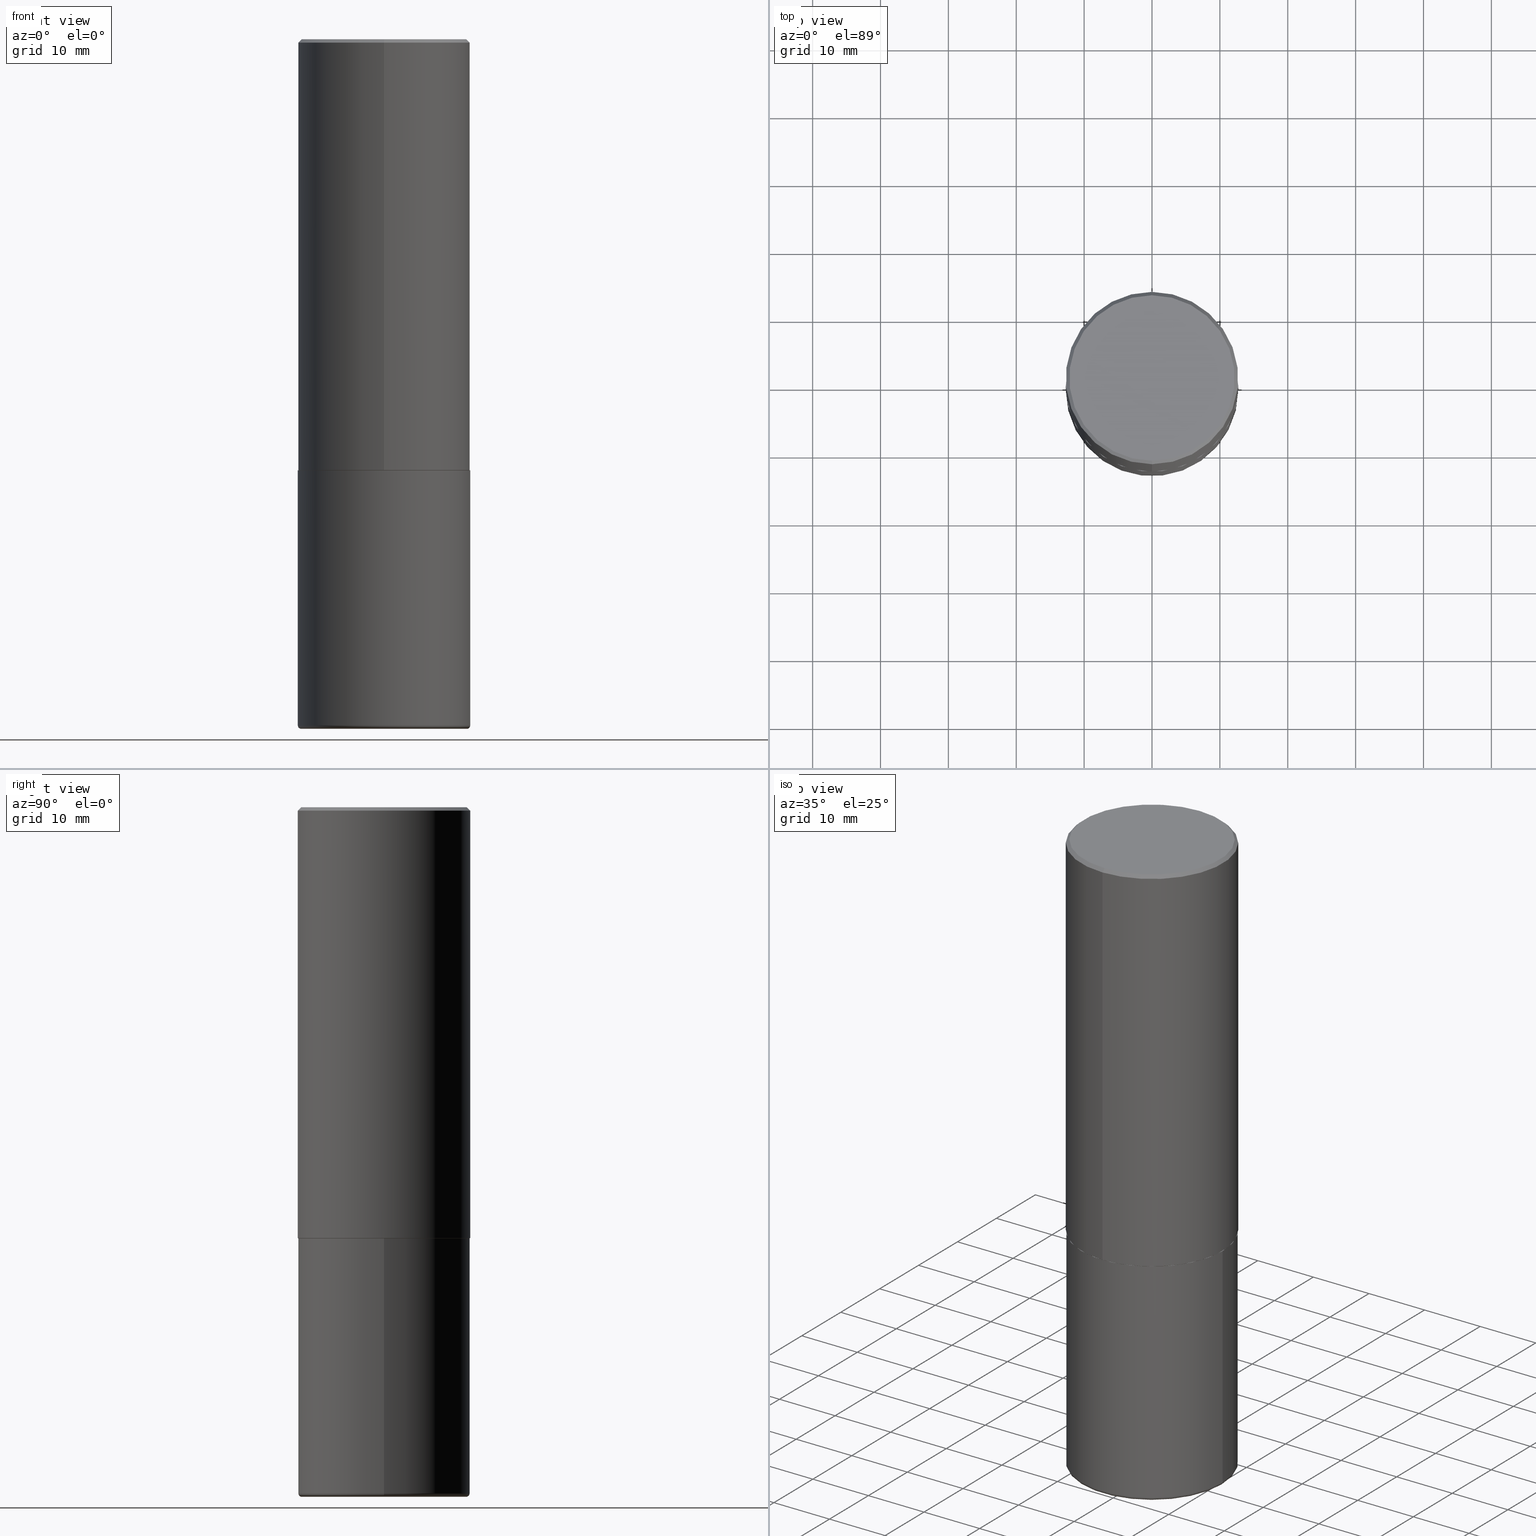
[diagram: canonical four-view strip — front | top / right | iso, engineering-drawing reading convention]
A machine part, canonical four-view strip (front | top / right | iso — engineering-drawing reading convention). The complete STEP part file that produces these views, byte-faithful:
ISO-10303-21;
HEADER;
FILE_DESCRIPTION (( 'STEP AP203' ),
    '1' );
FILE_NAME ('38393.STEP',
    '2024-03-03T02:39:27',
    ( '' ),
    ( '' ),
    'SwSTEP 2.0',
    'SolidWorks 2023',
    '' );
FILE_SCHEMA (( 'CONFIG_CONTROL_DESIGN' ));
ENDSEC;

DATA;
#1 = ORIENTED_EDGE ( 'NONE', *, *, #32, .T. ) ;
#2 = AXIS2_PLACEMENT_3D ( 'NONE', #148, #130, #61 ) ;
#3 = CIRCLE ( 'NONE', #167, 0.01999999999999985470 ) ;
#4 = EDGE_CURVE ( 'NONE', #366, #179, #187, .T. ) ;
#5 = CYLINDRICAL_SURFACE ( 'NONE', #306, 0.5000000000000001110 ) ;
#6 = ORIENTED_EDGE ( 'NONE', *, *, #92, .F. ) ;
#7 = FACE_OUTER_BOUND ( 'NONE', #232, .T. ) ;
#8 = AXIS2_PLACEMENT_3D ( 'NONE', #57, #406, #258 ) ;
#9 = LINE ( 'NONE', #78, #97 ) ;
#10 = CC_DESIGN_PERSON_AND_ORGANIZATION_ASSIGNMENT ( #158, #400, ( #388 ) ) ;
#11 = ORIENTED_EDGE ( 'NONE', *, *, #109, .F. ) ;
#12 = ORIENTED_EDGE ( 'NONE', *, *, #151, .T. ) ;
#13 = DIRECTION ( 'NONE',  ( -2.444395862887114472E-29, 3.493017854714053009E-15, 1.000000000000000000 ) ) ;
#14 = DIRECTION ( 'NONE',  ( 2.444395862887114472E-29, -3.493017854714053009E-15, -1.000000000000000000 ) ) ;
#15 = AXIS2_PLACEMENT_3D ( 'NONE', #196, #326, #409 ) ;
#16 = ADVANCED_BREP_SHAPE_REPRESENTATION ( '38393', ( #166, #26, #255 ), #313 ) ;
#17 = CARTESIAN_POINT ( 'NONE',  ( 0.000000000000000000, 0.000000000000000000, 0.000000000000000000 ) ) ;
#18 = FACE_OUTER_BOUND ( 'NONE', #108, .T. ) ;
#19 = CARTESIAN_POINT ( 'NONE',  ( 4.888791725774256270E-31, -6.986035709428142848E-17, -0.02000000000000010797 ) ) ;
#20 = CARTESIAN_POINT ( 'NONE',  ( 3.491481338843133355E-15, 0.4999999999999999445, -0.02000000000000185310 ) ) ;
#21 = APPROVAL_ROLE ( '' ) ;
#22 = CARTESIAN_POINT ( 'NONE',  ( 6.110989657217785340E-29, -8.732544636785131931E-15, -2.499999999999999556 ) ) ;
#23 = CARTESIAN_POINT ( 'NONE',  ( 4.888791725774256270E-31, -6.986035709428142848E-17, -0.02000000000000010797 ) ) ;
#24 = AXIS2_PLACEMENT_3D ( 'NONE', #266, #161, #126 ) ;
#25 = AXIS2_PLACEMENT_3D ( 'NONE', #257, #337, #144 ) ;
#26 = MANIFOLD_SOLID_BREP ( 'Body-Move/Copy2[2]', #305 ) ;
#27 = FACE_OUTER_BOUND ( 'NONE', #282, .T. ) ;
#28 = CARTESIAN_POINT ( 'NONE',  ( 3.545608251442960663E-15, 0.4989999999999912283, -2.500000000000001332 ) ) ;
#29 = PERSON_AND_ORGANIZATION_ROLE ( 'creator' ) ;
#30 = DIRECTION ( 'NONE',  ( -2.444395862887114472E-29, 3.493017854714053009E-15, 1.000000000000000000 ) ) ;
#31 = ORIENTED_EDGE ( 'NONE', *, *, #4, .T. ) ;
#32 = EDGE_CURVE ( 'NONE', #136, #112, #281, .T. ) ;
#33 = AXIS2_PLACEMENT_3D ( 'NONE', #259, #377, #94 ) ;
#34 = ORIENTED_EDGE ( 'NONE', *, *, #62, .F. ) ;
#35 = CARTESIAN_POINT ( 'NONE',  ( -0.4799999999999999822, -1.044935113675966299E-14, -4.000000000000000000 ) ) ;
#36 = ORIENTED_EDGE ( 'NONE', *, *, #303, .F. ) ;
#37 = VECTOR ( 'NONE', #416, 39.37007874015748143 ) ;
#38 = LOCAL_TIME ( 21, 39, 27.00000000000000000, #58 ) ;
#39 = ORIENTED_EDGE ( 'NONE', *, *, #32, .F. ) ;
#40 = ORIENTED_EDGE ( 'NONE', *, *, #122, .T. ) ;
#41 = EDGE_CURVE ( 'NONE', #47, #104, #278, .T. ) ;
#42 = ORIENTED_EDGE ( 'NONE', *, *, #41, .T. ) ;
#43 = ADVANCED_FACE ( 'NONE', ( #347 ), #160, .T. ) ;
#44 = APPROVAL_PERSON_ORGANIZATION ( #192, #152, #350 ) ;
#45 = ORIENTED_EDGE ( 'NONE', *, *, #320, .T. ) ;
#46 = EDGE_CURVE ( 'NONE', #102, #127, #387, .T. ) ;
#47 = VERTEX_POINT ( 'NONE', #289 ) ;
#48 = DIRECTION ( 'NONE',  ( 6.982962677686265922E-15, 1.000000000000000000, -3.491643216902136408E-15 ) ) ;
#49 = ORIENTED_EDGE ( 'NONE', *, *, #304, .T. ) ;
#50 = FACE_OUTER_BOUND ( 'NONE', #107, .T. ) ;
#51 = AXIS2_PLACEMENT_3D ( 'NONE', #291, #30, #159 ) ;
#52 = DIRECTION ( 'NONE',  ( 6.982962677686265922E-15, 1.000000000000000000, -3.493017854714053009E-15 ) ) ;
#53 = COORDINATED_UNIVERSAL_TIME_OFFSET ( 5, 0, .BEHIND. ) ;
#54 = FACE_OUTER_BOUND ( 'NONE', #365, .T. ) ;
#55 = DIRECTION ( 'NONE',  ( -2.444395862887114472E-29, 3.493017854714053009E-15, 1.000000000000000000 ) ) ;
#56 = APPROVAL_DATE_TIME ( #315, #197 ) ;
#57 = CARTESIAN_POINT ( 'NONE',  ( 9.732965848616844417E-29, -1.389609572859572061E-14, -3.979999999999999982 ) ) ;
#58 = COORDINATED_UNIVERSAL_TIME_OFFSET ( 5, 0, .BEHIND. ) ;
#59 = CIRCLE ( 'NONE', #24, 0.4999999999999999445 ) ;
#60 = AXIS2_PLACEMENT_3D ( 'NONE', #22, #176, #212 ) ;
#61 = DIRECTION ( 'NONE',  ( 6.982962677686265922E-15, 1.000000000000000000, -3.491643216902136408E-15 ) ) ;
#62 = EDGE_CURVE ( 'NONE', #104, #47, #165, .T. ) ;
#63 = PRODUCT ( '38393', '38393', '', ( #246 ) ) ;
#64 = CALENDAR_DATE ( 2024, 2, 3 ) ;
#65 = LINE ( 'NONE', #293, #298 ) ;
#66 = CALENDAR_DATE ( 2024, 2, 3 ) ;
#67 = EDGE_LOOP ( 'NONE', ( #363, #45, #12, #398 ) ) ;
#68 = ADVANCED_FACE ( 'NONE', ( #254 ), #311, .F. ) ;
#69 = DIRECTION ( 'NONE',  ( 1.000000000000000000, -6.982962677686266711E-15, 4.876176775795935793E-29 ) ) ;
#70 = CARTESIAN_POINT ( 'NONE',  ( 0.000000000000000000, 0.000000000000000000, 0.000000000000000000 ) ) ;
#71 = CARTESIAN_POINT ( 'NONE',  ( 0.5000000000000000000, -3.491481338843133355E-15, 2.438088387897967896E-29 ) ) ;
#72 = APPROVAL_PERSON_ORGANIZATION ( #121, #197, #21 ) ;
#73 = CARTESIAN_POINT ( 'NONE',  ( 9.732965848616844417E-29, -1.389609572859572061E-14, -3.979999999999999982 ) ) ;
#74 = DIRECTION ( 'NONE',  ( -2.444395862887114472E-29, 3.493017854714053009E-15, 1.000000000000000000 ) ) ;
#75 = ORIENTED_EDGE ( 'NONE', *, *, #296, .T. ) ;
#76 = AXIS2_PLACEMENT_3D ( 'NONE', #199, #193, #156 ) ;
#77 = PRODUCT_DEFINITION ( 'UNKNOWN', '', #405, #265 ) ;
#78 = CARTESIAN_POINT ( 'NONE',  ( -0.5000000000000000000, 3.552713678800500929E-15, -2.459467545127452891E-29 ) ) ;
#79 =( NAMED_UNIT ( * ) PLANE_ANGLE_UNIT ( ) SI_UNIT ( $, .RADIAN. ) );
#80 = DIRECTION ( 'NONE',  ( -6.982962677686265922E-15, -1.000000000000000000, 3.493017854714053009E-15 ) ) ;
#81 = AXIS2_PLACEMENT_3D ( 'NONE', #314, #154, #178 ) ;
#82 = CC_DESIGN_APPROVAL ( #197, ( #77 ) ) ;
#83 = CARTESIAN_POINT ( 'NONE',  ( 3.421651712066269268E-15, 0.4799999999999996492, -1.389920705807981102E-15 ) ) ;
#84 = EDGE_LOOP ( 'NONE', ( #200, #302, #31, #142 ) ) ;
#85 = LENGTH_MEASURE_WITH_UNIT ( LENGTH_MEASURE( 0.02539999999999999897 ), #175 );
#86 = DIRECTION ( 'NONE',  ( -2.445468806185136597E-29, 3.491481338843145583E-15, 1.000000000000000000 ) ) ;
#87 = CARTESIAN_POINT ( 'NONE',  ( 0.000000000000000000, 0.000000000000000000, 0.000000000000000000 ) ) ;
#88 =( NAMED_UNIT ( * ) SI_UNIT ( $, .STERADIAN. ) SOLID_ANGLE_UNIT ( ) );
#89 = CARTESIAN_POINT ( 'NONE',  ( -0.4999999999999998335, -1.034338204979522126E-14, -3.979999999999999982 ) ) ;
#90 = CIRCLE ( 'NONE', #236, 0.5000000000000000000 ) ;
#91 = DATE_AND_TIME ( #292, #381 ) ;
#92 = EDGE_CURVE ( 'NONE', #358, #136, #150, .T. ) ;
#93 = ORIENTED_EDGE ( 'NONE', *, *, #92, .T. ) ;
#94 = DIRECTION ( 'NONE',  ( -1.000000000000000000, 6.982962677686265922E-15, -4.876176775795935793E-29 ) ) ;
#95 = APPROVAL_STATUS ( 'not_yet_approved' ) ;
#96 = CIRCLE ( 'NONE', #124, 0.01999999999999985470 ) ;
#97 = VECTOR ( 'NONE', #334, 39.37007874015748143 ) ;
#98 = DATE_AND_TIME ( #64, #344 ) ;
#99 = CARTESIAN_POINT ( 'NONE',  ( 3.491481338843133355E-15, 0.4999999999999999445, -0.02000000000000185310 ) ) ;
#100 = DIRECTION ( 'NONE',  ( -2.444395862887114472E-29, 3.493017854714053009E-15, 1.000000000000000000 ) ) ;
#101 = CIRCLE ( 'NONE', #25, 0.5000000000000002220 ) ;
#102 = VERTEX_POINT ( 'NONE', #145 ) ;
#103 = ADVANCED_FACE ( 'NONE', ( #18 ), #335, .T. ) ;
#104 = VERTEX_POINT ( 'NONE', #35 ) ;
#105 = CARTESIAN_POINT ( 'NONE',  ( 6.110989657217785340E-29, -8.732544636785131931E-15, -2.499999999999999556 ) ) ;
#106 = VECTOR ( 'NONE', #323, 39.37007874015748143 ) ;
#107 = EDGE_LOOP ( 'NONE', ( #401, #34 ) ) ;
#108 = EDGE_LOOP ( 'NONE', ( #110, #410, #201, #332 ) ) ;
#109 = EDGE_CURVE ( 'NONE', #402, #112, #413, .T. ) ;
#110 = ORIENTED_EDGE ( 'NONE', *, *, #188, .F. ) ;
#111 = AXIS2_PLACEMENT_3D ( 'NONE', #252, #14, #52 ) ;
#112 = VERTEX_POINT ( 'NONE', #128 ) ;
#113 = CARTESIAN_POINT ( 'NONE',  ( 9.781875224740546387E-29, -1.396592535537258233E-14, -4.000000000000000000 ) ) ;
#114 = DIRECTION ( 'NONE',  ( 2.444395862887114472E-29, -3.493017854714053009E-15, -1.000000000000000000 ) ) ;
#115 = DATE_AND_TIME ( #123, #319 ) ;
#116 = EDGE_CURVE ( 'NONE', #237, #325, #352, .T. ) ;
#117 = AXIS2_PLACEMENT_3D ( 'NONE', #213, #182, #221 ) ;
#118 = CALENDAR_DATE ( 2024, 2, 3 ) ;
#119 = ADVANCED_FACE ( 'NONE', ( #230 ), #224, .T. ) ;
#120 = PLANE ( 'NONE',  #33 ) ;
#121 = PERSON_AND_ORGANIZATION ( #369, #299 ) ;
#122 = EDGE_CURVE ( 'NONE', #104, #362, #96, .T. ) ;
#123 = CALENDAR_DATE ( 2024, 2, 3 ) ;
#124 = AXIS2_PLACEMENT_3D ( 'NONE', #354, #327, #194 ) ;
#125 = AXIS2_PLACEMENT_3D ( 'NONE', #395, #397, #367 ) ;
#126 = DIRECTION ( 'NONE',  ( 1.000000000000000000, -6.982962677686267499E-15, 0.000000000000000000 ) ) ;
#127 = VERTEX_POINT ( 'NONE', #360 ) ;
#128 = CARTESIAN_POINT ( 'NONE',  ( 3.552713678800533273E-15, 0.4999999999999916178, -2.499000000000001886 ) ) ;
#129 = ORIENTED_EDGE ( 'NONE', *, *, #215, .T. ) ;
#130 = DIRECTION ( 'NONE',  ( 2.444395862887114472E-29, -3.493017854714053009E-15, -1.000000000000000000 ) ) ;
#131 = VECTOR ( 'NONE', #261, 39.37007874015748143 ) ;
#132 = CC_DESIGN_SECURITY_CLASSIFICATION ( #388, ( #405 ) ) ;
#133 = EDGE_CURVE ( 'NONE', #195, #362, #59, .T. ) ;
#134 = CARTESIAN_POINT ( 'NONE',  ( 0.000000000000000000, 0.000000000000000000, 0.000000000000000000 ) ) ;
#135 = ORIENTED_EDGE ( 'NONE', *, *, #303, .T. ) ;
#136 = VERTEX_POINT ( 'NONE', #295 ) ;
#137 = CARTESIAN_POINT ( 'NONE',  ( 6.110989657217785340E-29, -8.732544636785131931E-15, -2.499999999999999556 ) ) ;
#138 = CC_DESIGN_DATE_AND_TIME_ASSIGNMENT ( #91, #223, ( #77 ) ) ;
#139 = CC_DESIGN_PERSON_AND_ORGANIZATION_ASSIGNMENT ( #378, #353, ( #405 ) ) ;
#140 = FACE_OUTER_BOUND ( 'NONE', #370, .T. ) ;
#141 = AXIS2_PLACEMENT_3D ( 'NONE', #113, #371, #222 ) ;
#142 = ORIENTED_EDGE ( 'NONE', *, *, #180, .T. ) ;
#143 = APPLICATION_PROTOCOL_DEFINITION ( 'international standard', 'config_control_design', 1994, #253 ) ;
#144 = DIRECTION ( 'NONE',  ( -6.982962677686266711E-15, -1.000000000000000000, 3.278217592397114284E-15 ) ) ;
#145 = CARTESIAN_POINT ( 'NONE',  ( -0.5000000000000000000, -7.759685859051291847E-15, -2.500000000000000000 ) ) ;
#146 = AXIS2_PLACEMENT_3D ( 'NONE', #105, #240, #392 ) ;
#147 = EDGE_CURVE ( 'NONE', #195, #127, #271, .T. ) ;
#148 = CARTESIAN_POINT ( 'NONE',  ( 4.888791725774256270E-31, -6.986035709428142848E-17, -0.02000000000000010797 ) ) ;
#149 = DIRECTION ( 'NONE',  ( 1.000000000000000000, -6.982962677686269077E-15, 0.000000000000000000 ) ) ;
#150 = LINE ( 'NONE', #287, #218 ) ;
#151 = EDGE_CURVE ( 'NONE', #136, #325, #65, .T. ) ;
#152 = APPROVAL ( #153, 'UNSPECIFIED' ) ;
#153 = APPROVAL_STATUS ( 'not_yet_approved' ) ;
#154 = DIRECTION ( 'NONE',  ( -2.445468806185136597E-29, 3.491481338843145583E-15, 1.000000000000000000 ) ) ;
#155 = CC_DESIGN_APPROVAL ( #152, ( #405 ) ) ;
#156 = DIRECTION ( 'NONE',  ( -6.982962677686265922E-15, -1.000000000000000000, 3.284787166730577015E-15 ) ) ;
#157 = DIRECTION ( 'NONE',  ( -6.982962677686265922E-15, -1.000000000000000000, 3.491643216902136408E-15 ) ) ;
#158 = PERSON_AND_ORGANIZATION ( #369, #299 ) ;
#159 = DIRECTION ( 'NONE',  ( -6.982962677686265922E-15, -1.000000000000000000, 3.493017854714053404E-15 ) ) ;
#160 = CONICAL_SURFACE ( 'NONE', #189, 0.5000000000000000000, 0.7853981633974468357 ) ;
#161 = DIRECTION ( 'NONE',  ( -2.445468806185136597E-29, 3.491481338843145583E-15, 1.000000000000000000 ) ) ;
#162 = CARTESIAN_POINT ( 'NONE',  ( 0.4999999999999998335, -1.738757706743885397E-14, -3.979999999999999982 ) ) ;
#163 = CARTESIAN_POINT ( 'NONE',  ( 6.113672015462842613E-29, -8.728703347107864943E-15, -2.500000000000000000 ) ) ;
#164 = EDGE_CURVE ( 'NONE', #112, #179, #384, .T. ) ;
#165 = CIRCLE ( 'NONE', #141, 0.4799999999999999822 ) ;
#166 = MANIFOLD_SOLID_BREP ( 'Body-Move/Copy2[1]', #210 ) ;
#167 = AXIS2_PLACEMENT_3D ( 'NONE', #279, #244, #393 ) ;
#168 = FACE_OUTER_BOUND ( 'NONE', #67, .T. ) ;
#169 = ORIENTED_EDGE ( 'NONE', *, *, #133, .T. ) ;
#170 = CARTESIAN_POINT ( 'NONE',  ( 6.110989657217785340E-29, -8.732544636785131931E-15, -2.499999999999999556 ) ) ;
#171 = ORIENTED_EDGE ( 'NONE', *, *, #164, .T. ) ;
#172 = EDGE_LOOP ( 'NONE', ( #1, #171, #206, #207 ) ) ;
#173 = AXIS2_PLACEMENT_3D ( 'NONE', #163, #86, #149 ) ;
#174 = EDGE_LOOP ( 'NONE', ( #42, #40, #355, #36 ) ) ;
#175 =( LENGTH_UNIT ( ) NAMED_UNIT ( * ) SI_UNIT ( $, .METRE. ) );
#176 = DIRECTION ( 'NONE',  ( -2.444395862887114472E-29, 3.493017854714053009E-15, 1.000000000000000000 ) ) ;
#177 = ORIENTED_EDGE ( 'NONE', *, *, #228, .T. ) ;
#178 = DIRECTION ( 'NONE',  ( 1.000000000000000000, -6.982962677686269077E-15, 0.000000000000000000 ) ) ;
#179 = VERTEX_POINT ( 'NONE', #99 ) ;
#180 = EDGE_CURVE ( 'NONE', #179, #325, #351, .T. ) ;
#181 = CARTESIAN_POINT ( 'NONE',  ( -3.484498376165385415E-15, -0.4990000000000087144, -2.499999999999997780 ) ) ;
#182 = DIRECTION ( 'NONE',  ( -2.445468806185136597E-29, 3.491481338843145583E-15, 1.000000000000000000 ) ) ;
#183 = AXIS2_PLACEMENT_3D ( 'NONE', #73, #227, #386 ) ;
#184 = APPROVAL ( #403, 'UNSPECIFIED' ) ;
#185 = PRODUCT_RELATED_PRODUCT_CATEGORY ( 'detail', '', ( #63 ) ) ;
#186 = DIRECTION ( 'NONE',  ( -2.445468806185136597E-29, 3.491481338843145583E-15, 1.000000000000000000 ) ) ;
#187 = LINE ( 'NONE', #20, #412 ) ;
#188 = EDGE_CURVE ( 'NONE', #237, #366, #379, .T. ) ;
#189 = AXIS2_PLACEMENT_3D ( 'NONE', #23, #114, #48 ) ;
#190 = CC_DESIGN_APPROVAL ( #184, ( #388 ) ) ;
#191 = CARTESIAN_POINT ( 'NONE',  ( 3.552713678800501718E-15, 0.5000000000000001110, -1.746508927357027096E-15 ) ) ;
#192 = PERSON_AND_ORGANIZATION ( #369, #299 ) ;
#193 = DIRECTION ( 'NONE',  ( -2.444395862887114472E-29, 3.493017854714053009E-15, 1.000000000000000000 ) ) ;
#194 = DIRECTION ( 'NONE',  ( -1.000000000000000000, 7.105427357600977404E-15, 0.000000000000000000 ) ) ;
#195 = VERTEX_POINT ( 'NONE', #162 ) ;
#196 = CARTESIAN_POINT ( 'NONE',  ( -7.008764056476804818E-45, 1.001545549984518751E-30, 2.867278644547631726E-16 ) ) ;
#197 = APPROVAL ( #95, 'UNSPECIFIED' ) ;
#198 = ORIENTED_EDGE ( 'NONE', *, *, #202, .T. ) ;
#199 = CARTESIAN_POINT ( 'NONE',  ( 6.110989657217785340E-29, -8.732544636785131931E-15, -2.499999999999999556 ) ) ;
#200 = ORIENTED_EDGE ( 'NONE', *, *, #116, .F. ) ;
#201 = ORIENTED_EDGE ( 'NONE', *, *, #318, .T. ) ;
#202 = EDGE_CURVE ( 'NONE', #362, #195, #262, .T. ) ;
#203 = ORIENTED_EDGE ( 'NONE', *, *, #268, .F. ) ;
#204 = AXIS2_PLACEMENT_3D ( 'NONE', #368, #55, #372 ) ;
#205 = CIRCLE ( 'NONE', #414, 0.4989999999999999991 ) ;
#206 = ORIENTED_EDGE ( 'NONE', *, *, #318, .F. ) ;
#207 = ORIENTED_EDGE ( 'NONE', *, *, #151, .F. ) ;
#208 = PERSON_AND_ORGANIZATION ( #369, #299 ) ;
#209 = ORIENTED_EDGE ( 'NONE', *, *, #62, .T. ) ;
#210 = CLOSED_SHELL ( 'NONE', ( #373, #383, #233, #385, #308, #338 ) ) ;
#211 = TOROIDAL_SURFACE ( 'NONE', #248, 0.4799999999999999822, 0.01999999999999985470 ) ;
#212 = DIRECTION ( 'NONE',  ( -6.982962677686265922E-15, -1.000000000000000000, 3.284787166730577015E-15 ) ) ;
#213 = CARTESIAN_POINT ( 'NONE',  ( 9.781875224740546387E-29, -1.396592535537258233E-14, -4.000000000000000000 ) ) ;
#214 = ORIENTED_EDGE ( 'NONE', *, *, #202, .F. ) ;
#215 = EDGE_CURVE ( 'NONE', #358, #402, #364, .T. ) ;
#216 = CYLINDRICAL_SURFACE ( 'NONE', #225, 0.5000000000000000000 ) ;
#217 = ORIENTED_EDGE ( 'NONE', *, *, #215, .F. ) ;
#218 = VECTOR ( 'NONE', #349, 39.37007874015748143 ) ;
#219 = SECURITY_CLASSIFICATION_LEVEL ( 'unclassified' ) ;
#220 = DIRECTION ( 'NONE',  ( 1.000000000000000000, -6.982962677686266711E-15, 4.876176775795935793E-29 ) ) ;
#221 = DIRECTION ( 'NONE',  ( 1.000000000000000000, -6.982962677686268288E-15, 0.000000000000000000 ) ) ;
#222 = DIRECTION ( 'NONE',  ( 1.000000000000000000, -6.982962677686268288E-15, 0.000000000000000000 ) ) ;
#223 = DATE_TIME_ROLE ( 'creation_date' ) ;
#224 = CYLINDRICAL_SURFACE ( 'NONE', #235, 0.5000000000000001110 ) ;
#225 = AXIS2_PLACEMENT_3D ( 'NONE', #17, #229, #69 ) ;
#226 = COORDINATED_UNIVERSAL_TIME_OFFSET ( 5, 0, .BEHIND. ) ;
#227 = DIRECTION ( 'NONE',  ( -2.445468806185136597E-29, 3.491481338843145583E-15, 1.000000000000000000 ) ) ;
#228 = EDGE_CURVE ( 'NONE', #366, #237, #239, .T. ) ;
#229 = DIRECTION ( 'NONE',  ( -2.445468806185136597E-29, 3.491481338843145583E-15, 1.000000000000000000 ) ) ;
#230 = FACE_OUTER_BOUND ( 'NONE', #172, .T. ) ;
#231 = CC_DESIGN_PERSON_AND_ORGANIZATION_ASSIGNMENT ( #408, #376, ( #77 ) ) ;
#232 = EDGE_LOOP ( 'NONE', ( #217, #203 ) ) ;
#233 = ADVANCED_FACE ( 'NONE', ( #407 ), #120, .F. ) ;
#234 = CARTESIAN_POINT ( 'NONE',  ( 4.888791725774256270E-31, -6.986035709428142848E-17, -0.02000000000000010797 ) ) ;
#235 = AXIS2_PLACEMENT_3D ( 'NONE', #70, #100, #380 ) ;
#236 = AXIS2_PLACEMENT_3D ( 'NONE', #19, #13, #286 ) ;
#237 = VERTEX_POINT ( 'NONE', #382 ) ;
#238 = ORIENTED_EDGE ( 'NONE', *, *, #109, .T. ) ;
#239 = CIRCLE ( 'NONE', #51, 0.4799999999999996492 ) ;
#240 = DIRECTION ( 'NONE',  ( -2.444395862887114472E-29, 3.493017854714053009E-15, 1.000000000000000000 ) ) ;
#241 = CARTESIAN_POINT ( 'NONE',  ( 0.000000000000000000, 0.000000000000000000, 0.000000000000000000 ) ) ;
#242 = ORIENTED_EDGE ( 'NONE', *, *, #268, .T. ) ;
#243 = ADVANCED_FACE ( 'NONE', ( #7 ), #274, .F. ) ;
#244 = DIRECTION ( 'NONE',  ( -6.982962677686266711E-15, -1.000000000000000000, 3.491481338843145583E-15 ) ) ;
#245 = UNCERTAINTY_MEASURE_WITH_UNIT (LENGTH_MEASURE( 1.000000000000000082E-05 ), #312, 'distance_accuracy_value', 'NONE');
#246 = MECHANICAL_CONTEXT ( 'NONE', #253, 'mechanical' ) ;
#247 = DIRECTION ( 'NONE',  ( 1.000000000000000000, -6.982962677686269077E-15, 4.883557194083114022E-29 ) ) ;
#248 = AXIS2_PLACEMENT_3D ( 'NONE', #316, #186, #247 ) ;
#249 = ADVANCED_FACE ( 'NONE', ( #168 ), #5, .T. ) ;
#250 = EDGE_LOOP ( 'NONE', ( #177, #309 ) ) ;
#251 = CYLINDRICAL_SURFACE ( 'NONE', #272, 0.5000000000000000000 ) ;
#252 = CARTESIAN_POINT ( 'NONE',  ( 3.351822085289405181E-15, 0.4799999999999996492, -1.533284638035362713E-15 ) ) ;
#253 = APPLICATION_CONTEXT ( 'configuration controlled 3d designs of mechanical parts and assemblies' ) ;
#254 = FACE_OUTER_BOUND ( 'NONE', #250, .T. ) ;
#255 = AXIS2_PLACEMENT_3D ( 'NONE', #241, #310, #394 ) ;
#256 = APPROVAL_DATE_TIME ( #115, #184 ) ;
#257 = CARTESIAN_POINT ( 'NONE',  ( 6.108545261354899927E-29, -8.729051618930419607E-15, -2.499000000000000110 ) ) ;
#258 = DIRECTION ( 'NONE',  ( 1.000000000000000000, -6.982962677686269077E-15, 4.883557194083114022E-29 ) ) ;
#259 = CARTESIAN_POINT ( 'NONE',  ( 4.206032757375876713E-29, -1.146055134077212698E-14, -2.500000000000000000 ) ) ;
#260 = COORDINATED_UNIVERSAL_TIME_OFFSET ( 5, 0, .BEHIND. ) ;
#261 = DIRECTION ( 'NONE',  ( -4.851104656540956386E-15, -0.7071067811865489050, -0.7071067811865461294 ) ) ;
#262 = CIRCLE ( 'NONE', #183, 0.4999999999999999445 ) ;
#263 = APPROVAL_PERSON_ORGANIZATION ( #317, #184, #322 ) ;
#264 = SHAPE_DEFINITION_REPRESENTATION ( #267, #16 ) ;
#265 = DESIGN_CONTEXT ( 'detailed design', #415, 'design' ) ;
#266 = CARTESIAN_POINT ( 'NONE',  ( 9.732965848616844417E-29, -1.389609572859572061E-14, -3.979999999999999982 ) ) ;
#267 = PRODUCT_DEFINITION_SHAPE ( 'NONE', 'NONE',  #77 ) ;
#268 = EDGE_CURVE ( 'NONE', #402, #358, #205, .T. ) ;
#269 = DIRECTION ( 'NONE',  ( -2.444395862887114192E-29, 3.493017854714053009E-15, 1.000000000000000000 ) ) ;
#270 = FACE_OUTER_BOUND ( 'NONE', #174, .T. ) ;
#271 = LINE ( 'NONE', #71, #106 ) ;
#272 = AXIS2_PLACEMENT_3D ( 'NONE', #87, #342, #220 ) ;
#273 = ADVANCED_FACE ( 'NONE', ( #140 ), #357, .T. ) ;
#274 = PLANE ( 'NONE',  #343 ) ;
#275 = ORIENTED_EDGE ( 'NONE', *, *, #46, .F. ) ;
#276 = DIRECTION ( 'NONE',  ( -6.982962677686265922E-15, -1.000000000000000000, 3.284787166730577015E-15 ) ) ;
#277 = ORIENTED_EDGE ( 'NONE', *, *, #147, .T. ) ;
#278 = CIRCLE ( 'NONE', #117, 0.4799999999999999822 ) ;
#279 = CARTESIAN_POINT ( 'NONE',  ( 0.4799999999999999822, -1.724791781388513052E-14, -3.979999999999999982 ) ) ;
#280 = CARTESIAN_POINT ( 'NONE',  ( -3.430248998885764992E-15, -0.5000000000000001110, -0.01999999999999835937 ) ) ;
#281 = CIRCLE ( 'NONE', #204, 0.5000000000000002220 ) ;
#282 = EDGE_LOOP ( 'NONE', ( #391, #198, #277, #275 ) ) ;
#283 = CARTESIAN_POINT ( 'NONE',  ( 3.549160965121762351E-15, 0.4989999999999912283, -2.500000000000001332 ) ) ;
#284 = PLANE ( 'NONE',  #125 ) ;
#285 = PERSON_AND_ORGANIZATION ( #369, #299 ) ;
#286 = DIRECTION ( 'NONE',  ( -6.982962677686265922E-15, -1.000000000000000000, 3.491643216902136408E-15 ) ) ;
#287 = CARTESIAN_POINT ( 'NONE',  ( -3.484498376165385415E-15, -0.4990000000000087144, -2.499999999999997780 ) ) ;
#288 = DATE_TIME_ROLE ( 'classification_date' ) ;
#289 = CARTESIAN_POINT ( 'NONE',  ( 0.4799999999999999822, -1.731774744066199067E-14, -4.000000000000000000 ) ) ;
#290 = LOCAL_TIME ( 21, 39, 27.00000000000000000, #226 ) ;
#291 = CARTESIAN_POINT ( 'NONE',  ( -7.008764056476804818E-45, 1.001545549984518751E-30, 2.867278644547631726E-16 ) ) ;
#292 = CALENDAR_DATE ( 2024, 2, 3 ) ;
#293 = CARTESIAN_POINT ( 'NONE',  ( -3.491481338843133750E-15, -0.5000000000000001110, 1.746508927357027096E-15 ) ) ;
#294 = CARTESIAN_POINT ( 'NONE',  ( -3.430248998885764992E-15, -0.5000000000000001110, -0.01999999999999835937 ) ) ;
#295 = CARTESIAN_POINT ( 'NONE',  ( -3.491481338843073796E-15, -0.5000000000000089928, -2.498999999999998778 ) ) ;
#296 = EDGE_CURVE ( 'NONE', #362, #102, #9, .T. ) ;
#297 = ORIENTED_EDGE ( 'NONE', *, *, #304, .F. ) ;
#298 = VECTOR ( 'NONE', #269, 39.37007874015748143 ) ;
#299 = ORGANIZATION ( 'UNSPECIFIED', 'UNSPECIFIED', '' ) ;
#300 = ORIENTED_EDGE ( 'NONE', *, *, #320, .F. ) ;
#301 = DIRECTION ( 'NONE',  ( -2.444395862887114472E-29, 3.493017854714053009E-15, 1.000000000000000000 ) ) ;
#302 = ORIENTED_EDGE ( 'NONE', *, *, #228, .F. ) ;
#303 = EDGE_CURVE ( 'NONE', #47, #195, #3, .T. ) ;
#304 = EDGE_CURVE ( 'NONE', #127, #102, #324, .T. ) ;
#305 = CLOSED_SHELL ( 'NONE', ( #273, #119, #103, #43, #249, #333, #243, #68 ) ) ;
#306 = AXIS2_PLACEMENT_3D ( 'NONE', #134, #390, #331 ) ;
#307 = ORIENTED_EDGE ( 'NONE', *, *, #147, .F. ) ;
#308 = ADVANCED_FACE ( 'NONE', ( #341 ), #211, .T. ) ;
#309 = ORIENTED_EDGE ( 'NONE', *, *, #188, .T. ) ;
#310 = DIRECTION ( 'NONE',  ( 0.000000000000000000, 0.000000000000000000, 1.000000000000000000 ) ) ;
#311 = PLANE ( 'NONE',  #111 ) ;
#312 =( CONVERSION_BASED_UNIT ( 'INCH', #85 ) LENGTH_UNIT ( ) NAMED_UNIT ( #361 ) );
#313 =( GEOMETRIC_REPRESENTATION_CONTEXT ( 3 ) GLOBAL_UNCERTAINTY_ASSIGNED_CONTEXT ( ( #245 ) ) GLOBAL_UNIT_ASSIGNED_CONTEXT ( ( #312, #79, #88 ) ) REPRESENTATION_CONTEXT ( 'NONE', 'WORKASPACE' ) );
#314 = CARTESIAN_POINT ( 'NONE',  ( 6.113672015462842613E-29, -8.728703347107864943E-15, -2.500000000000000000 ) ) ;
#315 = DATE_AND_TIME ( #66, #290 ) ;
#316 = CARTESIAN_POINT ( 'NONE',  ( 9.732965848616844417E-29, -1.389609572859572061E-14, -3.979999999999999982 ) ) ;
#317 = PERSON_AND_ORGANIZATION ( #369, #299 ) ;
#318 = EDGE_CURVE ( 'NONE', #325, #179, #90, .T. ) ;
#319 = LOCAL_TIME ( 21, 39, 27.00000000000000000, #411 ) ;
#320 = EDGE_CURVE ( 'NONE', #112, #136, #101, .T. ) ;
#321 = APPROVAL_DATE_TIME ( #346, #152 ) ;
#322 = APPROVAL_ROLE ( '' ) ;
#323 = DIRECTION ( 'NONE',  ( -2.445468806185136877E-29, 3.491481338843145188E-15, 1.000000000000000000 ) ) ;
#324 = CIRCLE ( 'NONE', #173, 0.5000000000000000000 ) ;
#325 = VERTEX_POINT ( 'NONE', #280 ) ;
#326 = DIRECTION ( 'NONE',  ( -2.444395862887114472E-29, 3.493017854714053009E-15, 1.000000000000000000 ) ) ;
#327 = DIRECTION ( 'NONE',  ( 7.105427357601001859E-15, 1.000000000000000000, -3.491481338843145583E-15 ) ) ;
#328 = ORIENTED_EDGE ( 'NONE', *, *, #122, .F. ) ;
#329 = AXIS2_PLACEMENT_3D ( 'NONE', #234, #356, #157 ) ;
#330 = EDGE_LOOP ( 'NONE', ( #169, #75, #297, #307 ) ) ;
#331 = DIRECTION ( 'NONE',  ( -6.982962677686265922E-15, -1.000000000000000000, 3.493017854714053404E-15 ) ) ;
#332 = ORIENTED_EDGE ( 'NONE', *, *, #4, .F. ) ;
#333 = ADVANCED_FACE ( 'NONE', ( #54 ), #375, .T. ) ;
#334 = DIRECTION ( 'NONE',  ( -2.445468806185136877E-29, 3.491481338843145188E-15, 1.000000000000000000 ) ) ;
#335 = CONICAL_SURFACE ( 'NONE', #2, 0.5000000000000000000, 0.7853981633974468357 ) ;
#336 = TOROIDAL_SURFACE ( 'NONE', #8, 0.4799999999999999822, 0.01999999999999985470 ) ;
#337 = DIRECTION ( 'NONE',  ( -2.444395862887114472E-29, 3.493017854714053009E-15, 1.000000000000000000 ) ) ;
#338 = ADVANCED_FACE ( 'NONE', ( #50 ), #284, .T. ) ;
#339 = FACE_OUTER_BOUND ( 'NONE', #330, .T. ) ;
#340 = ORIENTED_EDGE ( 'NONE', *, *, #46, .T. ) ;
#341 = FACE_OUTER_BOUND ( 'NONE', #396, .T. ) ;
#342 = DIRECTION ( 'NONE',  ( -2.445468806185136597E-29, 3.491481338843145583E-15, 1.000000000000000000 ) ) ;
#343 = AXIS2_PLACEMENT_3D ( 'NONE', #137, #74, #80 ) ;
#344 = LOCAL_TIME ( 21, 39, 27.00000000000000000, #53 ) ;
#345 = DIRECTION ( 'NONE',  ( 4.937700262164540154E-15, 0.7071067811865440200, -0.7071067811865510144 ) ) ;
#346 = DATE_AND_TIME ( #118, #38 ) ;
#347 = FACE_OUTER_BOUND ( 'NONE', #84, .T. ) ;
#348 = APPLICATION_PROTOCOL_DEFINITION ( 'international standard', 'config_control_design', 1994, #415 ) ;
#349 = DIRECTION ( 'NONE',  ( -4.937700262167077130E-15, -0.7071067811869072850, 0.7071067811861877495 ) ) ;
#350 = APPROVAL_ROLE ( '' ) ;
#351 = CIRCLE ( 'NONE', #329, 0.5000000000000000000 ) ;
#352 = LINE ( 'NONE', #294, #131 ) ;
#353 = PERSON_AND_ORGANIZATION_ROLE ( 'design_supplier' ) ;
#354 = CARTESIAN_POINT ( 'NONE',  ( -0.4799999999999999822, -1.048549059694723984E-14, -3.979999999999999982 ) ) ;
#355 = ORIENTED_EDGE ( 'NONE', *, *, #133, .F. ) ;
#356 = DIRECTION ( 'NONE',  ( -2.444395862887114472E-29, 3.493017854714053009E-15, 1.000000000000000000 ) ) ;
#357 = CONICAL_SURFACE ( 'NONE', #146, 0.4989999999999999991, 0.7853981633979605359 ) ;
#358 = VERTEX_POINT ( 'NONE', #181 ) ;
#359 = CC_DESIGN_DATE_AND_TIME_ASSIGNMENT ( #98, #288, ( #388 ) ) ;
#360 = CARTESIAN_POINT ( 'NONE',  ( 0.5000000000000000000, -1.222018468595099830E-14, -2.500000000000000000 ) ) ;
#361 = DIMENSIONAL_EXPONENTS ( 1.000000000000000000, 0.000000000000000000, 0.000000000000000000, 0.000000000000000000, 0.000000000000000000, 0.000000000000000000, 0.000000000000000000 ) ;
#362 = VERTEX_POINT ( 'NONE', #89 ) ;
#363 = ORIENTED_EDGE ( 'NONE', *, *, #164, .F. ) ;
#364 = CIRCLE ( 'NONE', #76, 0.4989999999999999991 ) ;
#365 = EDGE_LOOP ( 'NONE', ( #11, #242, #93, #300 ) ) ;
#366 = VERTEX_POINT ( 'NONE', #83 ) ;
#367 = DIRECTION ( 'NONE',  ( -1.000000000000000000, 6.982962677686265922E-15, -4.876176775795935793E-29 ) ) ;
#368 = CARTESIAN_POINT ( 'NONE',  ( 6.108545261354899927E-29, -8.729051618930419607E-15, -2.499000000000000110 ) ) ;
#369 = PERSON ( 'UNSPECIFIED', 'UNSPECIFIED', 'UNSPECIFIED', ('UNSPECIFIED'), ('UNSPECIFIED'), ('UNSPECIFIED') ) ;
#370 = EDGE_LOOP ( 'NONE', ( #129, #238, #39, #6 ) ) ;
#371 = DIRECTION ( 'NONE',  ( -2.445468806185136597E-29, 3.491481338843145583E-15, 1.000000000000000000 ) ) ;
#372 = DIRECTION ( 'NONE',  ( -6.982962677686266711E-15, -1.000000000000000000, 3.278217592397114284E-15 ) ) ;
#373 = ADVANCED_FACE ( 'NONE', ( #339 ), #216, .T. ) ;
#374 = PERSON_AND_ORGANIZATION_ROLE ( 'design_owner' ) ;
#375 = CONICAL_SURFACE ( 'NONE', #60, 0.4989999999999999991, 0.7853981633979605359 ) ;
#376 = PERSON_AND_ORGANIZATION_ROLE ( 'creator' ) ;
#377 = DIRECTION ( 'NONE',  ( 2.438088387897960049E-29, -3.491481338843145188E-15, -1.000000000000000000 ) ) ;
#378 = PERSON_AND_ORGANIZATION ( #369, #299 ) ;
#379 = CIRCLE ( 'NONE', #15, 0.4799999999999996492 ) ;
#380 = DIRECTION ( 'NONE',  ( -6.982962677686265922E-15, -1.000000000000000000, 3.493017854714053404E-15 ) ) ;
#381 = LOCAL_TIME ( 21, 39, 27.00000000000000000, #260 ) ;
#382 = CARTESIAN_POINT ( 'NONE',  ( -3.361644018908048478E-15, -0.4799999999999996492, 1.963376434717507152E-15 ) ) ;
#383 = ADVANCED_FACE ( 'NONE', ( #270 ), #336, .T. ) ;
#384 = LINE ( 'NONE', #191, #37 ) ;
#385 = ADVANCED_FACE ( 'NONE', ( #27 ), #251, .T. ) ;
#386 = DIRECTION ( 'NONE',  ( 1.000000000000000000, -6.982962677686267499E-15, 0.000000000000000000 ) ) ;
#387 = CIRCLE ( 'NONE', #81, 0.5000000000000000000 ) ;
#388 = SECURITY_CLASSIFICATION ( '', '', #219 ) ;
#389 = EDGE_LOOP ( 'NONE', ( #49, #340 ) ) ;
#390 = DIRECTION ( 'NONE',  ( -2.444395862887114472E-29, 3.493017854714053009E-15, 1.000000000000000000 ) ) ;
#391 = ORIENTED_EDGE ( 'NONE', *, *, #296, .F. ) ;
#392 = DIRECTION ( 'NONE',  ( -6.982962677686265922E-15, -1.000000000000000000, 3.284787166730577015E-15 ) ) ;
#393 = DIRECTION ( 'NONE',  ( 1.000000000000000000, -6.982962677686287221E-15, 0.000000000000000000 ) ) ;
#394 = DIRECTION ( 'NONE',  ( 1.000000000000000000, 0.000000000000000000, 0.000000000000000000 ) ) ;
#395 = CARTESIAN_POINT ( 'NONE',  ( 9.781875224740546387E-29, -1.396592535537258233E-14, -4.000000000000000000 ) ) ;
#396 = EDGE_LOOP ( 'NONE', ( #328, #209, #135, #214 ) ) ;
#397 = DIRECTION ( 'NONE',  ( 2.438088387897960049E-29, -3.491481338843145188E-15, -1.000000000000000000 ) ) ;
#398 = ORIENTED_EDGE ( 'NONE', *, *, #180, .F. ) ;
#399 = CC_DESIGN_PERSON_AND_ORGANIZATION_ASSIGNMENT ( #208, #374, ( #63 ) ) ;
#400 = PERSON_AND_ORGANIZATION_ROLE ( 'classification_officer' ) ;
#401 = ORIENTED_EDGE ( 'NONE', *, *, #41, .F. ) ;
#402 = VERTEX_POINT ( 'NONE', #283 ) ;
#403 = APPROVAL_STATUS ( 'not_yet_approved' ) ;
#404 = VECTOR ( 'NONE', #418, 39.37007874015748143 ) ;
#405 = PRODUCT_DEFINITION_FORMATION_WITH_SPECIFIED_SOURCE ( 'ANY', '', #63, .NOT_KNOWN. ) ;
#406 = DIRECTION ( 'NONE',  ( -2.445468806185136597E-29, 3.491481338843145583E-15, 1.000000000000000000 ) ) ;
#407 = FACE_OUTER_BOUND ( 'NONE', #389, .T. ) ;
#408 = PERSON_AND_ORGANIZATION ( #369, #299 ) ;
#409 = DIRECTION ( 'NONE',  ( -6.982962677686265922E-15, -1.000000000000000000, 3.493017854714053404E-15 ) ) ;
#410 = ORIENTED_EDGE ( 'NONE', *, *, #116, .T. ) ;
#411 = COORDINATED_UNIVERSAL_TIME_OFFSET ( 5, 0, .BEHIND. ) ;
#412 = VECTOR ( 'NONE', #345, 39.37007874015748143 ) ;
#413 = LINE ( 'NONE', #28, #404 ) ;
#414 = AXIS2_PLACEMENT_3D ( 'NONE', #170, #301, #276 ) ;
#415 = APPLICATION_CONTEXT ( 'configuration controlled 3d designs of mechanical parts and assemblies' ) ;
#416 = DIRECTION ( 'NONE',  ( -2.444395862887114192E-29, 3.493017854714053009E-15, 1.000000000000000000 ) ) ;
#417 = CC_DESIGN_PERSON_AND_ORGANIZATION_ASSIGNMENT ( #285, #29, ( #405 ) ) ;
#418 = DIRECTION ( 'NONE',  ( 5.024295867790635654E-15, 0.7071067811869121700, 0.7071067811861828645 ) ) ;
ENDSEC;
END-ISO-10303-21;
